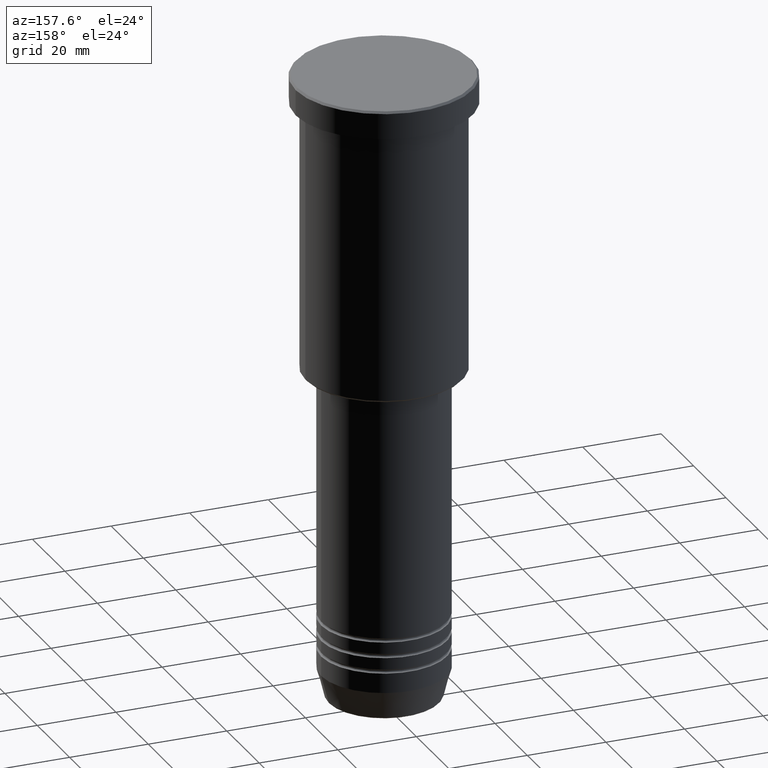
[diagram: clean part render]
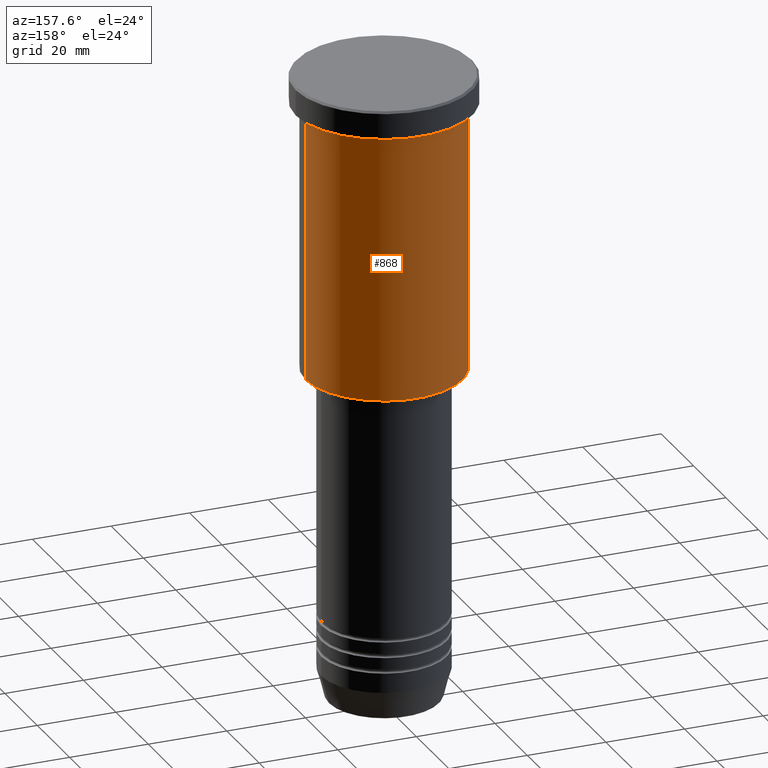
[diagram: same view with one face highlighted and labeled with its STEP entity id]
A machine part, auxiliary view. The second image highlights one B-rep face of the part: STEP entity #868.
In plain terms, the highlighted cylindrical surface (partial cylindrical patch) has radius 20 mm, axis along (-0, -0, 1).
Its self-contained STEP definition (entity closure, byte-faithful):
#1 = ORIENTED_EDGE ( 'NONE', *, *, #480, .T. ) ;
#38 = ORIENTED_EDGE ( 'NONE', *, *, #1168, .T. ) ;
#54 = DIRECTION ( 'NONE',  ( -0.000000000000000000, -0.000000000000000000, 1.000000000000000000 ) ) ;
#115 = CARTESIAN_POINT ( 'NONE',  ( 20.00000000000000355, 0.000000000000000000, -75.49999999999997158 ) ) ;
#129 = VERTEX_POINT ( 'NONE', #351 ) ;
#131 = CARTESIAN_POINT ( 'NONE',  ( -20.00000000000000355, 2.449293598294706907E-15, 0.000000000000000000 ) ) ;
#146 = AXIS2_PLACEMENT_3D ( 'NONE', #730, #263, #635 ) ;
#161 = CARTESIAN_POINT ( 'NONE',  ( 20.00000000000000355, 0.000000000000000000, 0.000000000000000000 ) ) ;
#222 = VERTEX_POINT ( 'NONE', #115 ) ;
#242 = AXIS2_PLACEMENT_3D ( 'NONE', #414, #54, #424 ) ;
#247 = LINE ( 'NONE', #161, #915 ) ;
#263 = DIRECTION ( 'NONE',  ( -0.000000000000000000, -0.000000000000000000, 1.000000000000000000 ) ) ;
#294 = CIRCLE ( 'NONE', #242, 20.00000000000000000 ) ;
#327 = DIRECTION ( 'NONE',  ( -0.000000000000000000, -0.000000000000000000, 1.000000000000000000 ) ) ;
#351 = CARTESIAN_POINT ( 'NONE',  ( -20.00000000000000000, 2.449293598294706513E-15, -7.999999999999994671 ) ) ;
#414 = CARTESIAN_POINT ( 'NONE',  ( 0.000000000000000000, 0.000000000000000000, -7.999999999999994671 ) ) ;
#421 = DIRECTION ( 'NONE',  ( -0.000000000000000000, -0.000000000000000000, 1.000000000000000000 ) ) ;
#424 = DIRECTION ( 'NONE',  ( 1.000000000000000000, 0.000000000000000000, 0.000000000000000000 ) ) ;
#442 = DIRECTION ( 'NONE',  ( -0.000000000000000000, -0.000000000000000000, 1.000000000000000000 ) ) ;
#463 = CARTESIAN_POINT ( 'NONE',  ( 20.00000000000000000, 0.000000000000000000, -7.999999999999994671 ) ) ;
#480 = EDGE_CURVE ( 'NONE', #222, #1036, #822, .T. ) ;
#495 = VECTOR ( 'NONE', #327, 1000.000000000000000 ) ;
#531 = CYLINDRICAL_SURFACE ( 'NONE', #146, 20.00000000000000355 ) ;
#544 = VERTEX_POINT ( 'NONE', #463 ) ;
#635 = DIRECTION ( 'NONE',  ( 1.000000000000000000, 0.000000000000000000, 0.000000000000000000 ) ) ;
#698 = CARTESIAN_POINT ( 'NONE',  ( 0.000000000000000000, 0.000000000000000000, -75.49999999999997158 ) ) ;
#701 = CARTESIAN_POINT ( 'NONE',  ( -20.00000000000000355, 2.449293598294706907E-15, -75.49999999999997158 ) ) ;
#730 = CARTESIAN_POINT ( 'NONE',  ( 0.000000000000000000, 0.000000000000000000, 0.000000000000000000 ) ) ;
#757 = LINE ( 'NONE', #131, #495 ) ;
#758 = EDGE_LOOP ( 'NONE', ( #1, #38, #1005, #1156 ) ) ;
#813 = FACE_OUTER_BOUND ( 'NONE', #758, .T. ) ;
#822 = CIRCLE ( 'NONE', #1114, 20.00000000000000355 ) ;
#868 = ADVANCED_FACE ( 'NONE', ( #813 ), #531, .T. ) ;
#871 = EDGE_CURVE ( 'NONE', #222, #544, #247, .T. ) ;
#915 = VECTOR ( 'NONE', #421, 1000.000000000000000 ) ;
#1005 = ORIENTED_EDGE ( 'NONE', *, *, #1103, .F. ) ;
#1036 = VERTEX_POINT ( 'NONE', #701 ) ;
#1064 = DIRECTION ( 'NONE',  ( -1.000000000000000000, 0.000000000000000000, 0.000000000000000000 ) ) ;
#1103 = EDGE_CURVE ( 'NONE', #544, #129, #294, .T. ) ;
#1114 = AXIS2_PLACEMENT_3D ( 'NONE', #698, #442, #1064 ) ;
#1156 = ORIENTED_EDGE ( 'NONE', *, *, #871, .F. ) ;
#1168 = EDGE_CURVE ( 'NONE', #1036, #129, #757, .T. ) ;